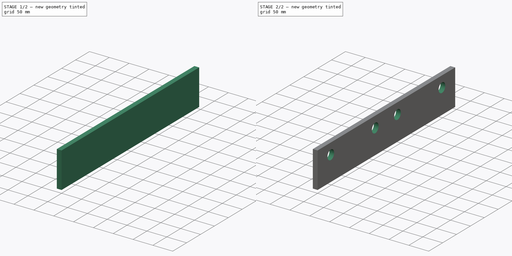
[diagram: build sequence overview — one tinted view per stage of 2, left to right]
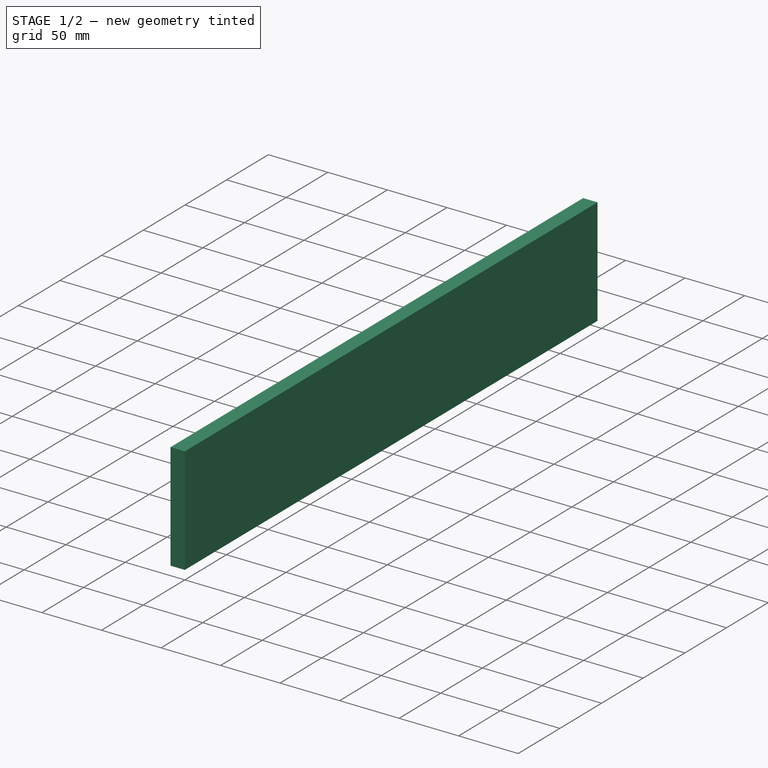
[diagram: stage 1 of 2 — iso view after this stage's code; geometry added in this stage tinted green]
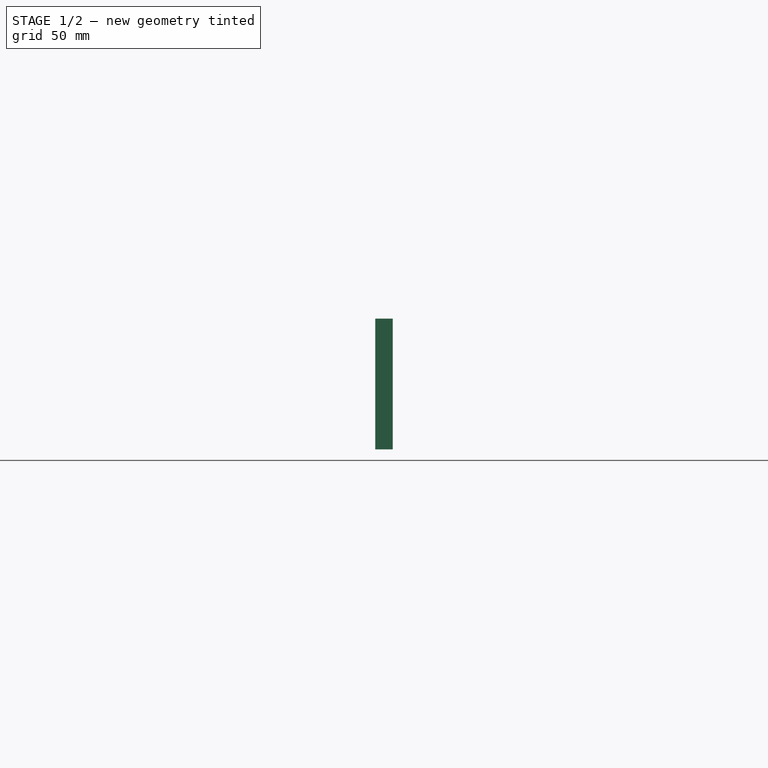
[diagram: stage 1 of 2 — front view after this stage's code; geometry added in this stage tinted green]
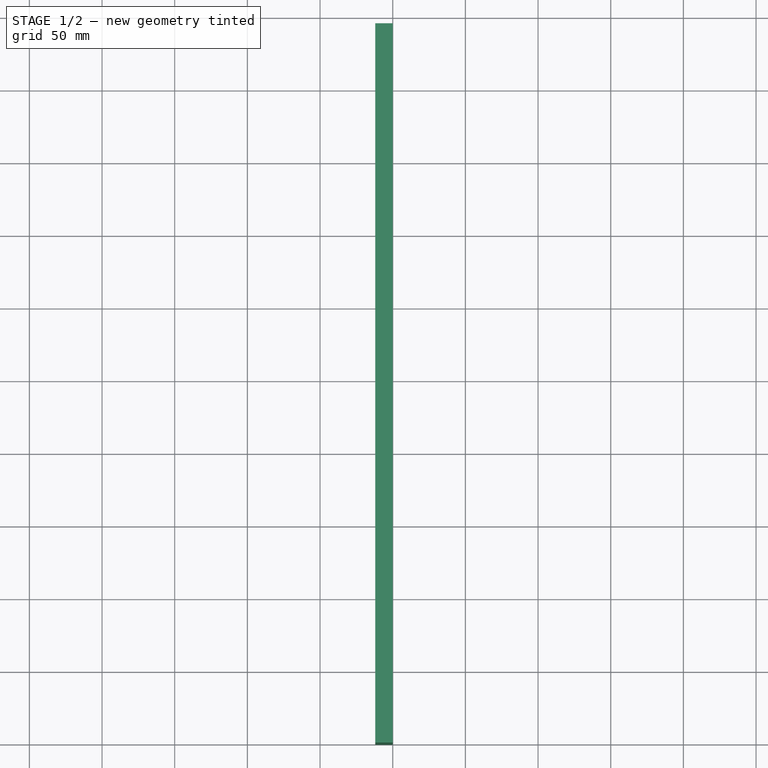
[diagram: stage 1 of 2 — top view after this stage's code; geometry added in this stage tinted green]
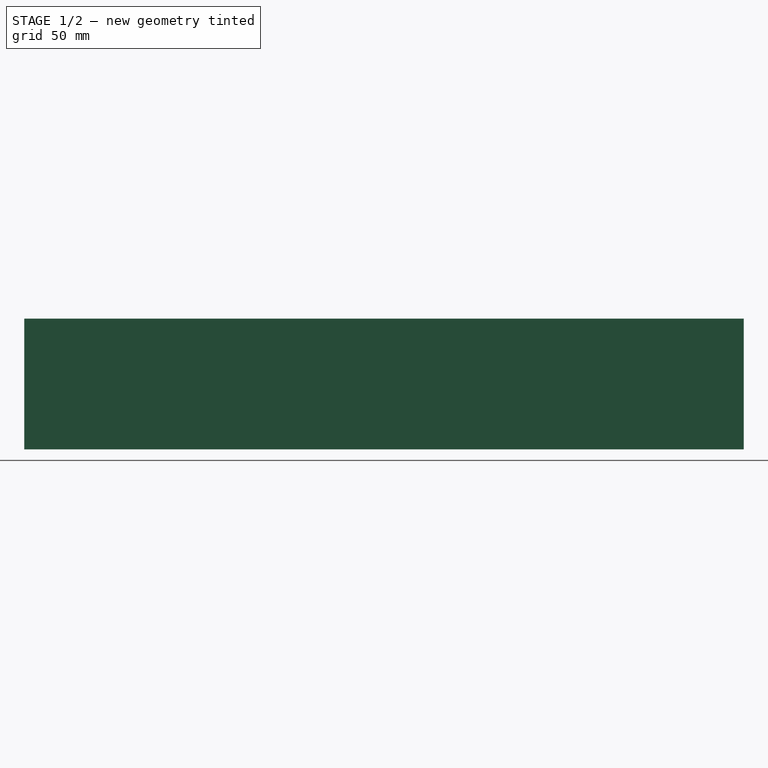
[diagram: stage 1 of 2 — right view after this stage's code; geometry added in this stage tinted green]
FCSTD DOCUMENT  (FreeCAD 0.19R24276 (Git))
Label: 1001_keyboard_front_16_
License: All rights reserved
LicenseURL: http://en.wikipedia.org/wiki/All_rights_reserved
objects: Sketcher::SketchObject×2, Spreadsheet::Sheet×1, PartDesign::Pad×1, PartDesign::Pocket×1, PartDesign::Body×1
note: 7 computed .brp shape members not serialized (recipe doc carries the construction recipe); baked Part::Feature solids carry a one-line shape summary decoded from their .brp

FEATURE [Sketcher::SketchObject] Sketch
  FullyConstrained = true
  MapMode = 4
  Placement = pos=(0,0,0) rot=(0.57735,0.57735,0.57735;2.0944rad)
  Support = -> [XY_Plane]
  expr: Constraints[6] = Spreadsheet.nY
  expr: Constraints[5] = Spreadsheet.nZ
  sketch-geometry (5):
    g0: LineSegment StartX=0 StartY=0 StartZ=0 EndX=0 EndY=90 EndZ=0
    g1: LineSegment StartX=495 StartY=0 StartZ=0 EndX=495 EndY=90 EndZ=0
    g2: LineSegment StartX=495 StartY=90 StartZ=0 EndX=0 EndY=90 EndZ=0
    g3: LineSegment StartX=247.5 StartY=0 StartZ=0 EndX=0 EndY=0 EndZ=0
    g4: LineSegment StartX=495 StartY=0 StartZ=0 EndX=247.5 EndY=0 EndZ=0
  constraints (14):
    c: Vertical(g0)
    c: Vertical(g1)
    c: Coincident(g2,g1)
    c: Coincident(g2,g0)
    c: Horizontal(g2)
    c: DistanceY(g1,g1) = 90
    c: DistanceX(g2,g2) = 495
    c: Coincident(g3,g0)
    c: Coincident(g4,g1)
    c: Horizontal(g4)
    c: Equal(g3,g4)
    c: Coincident(g4,g3)
    c: Horizontal(g3)
    c: Coincident(g0,g-1)
FEATURE [Spreadsheet::Sheet] Spreadsheet  label="xls"
  cells = B2=BODY FLOOR; E2=Ex.Ref.; B3=Thichness; C3=.T; D3=12; E3=mm; B7=KEYBOARD FRONT; D7=Sperrholz Birke 12 mm; B8=Width; C8=nY; D8(nY)=495; F8=Max Height; G8=Roof Thickness; H8=Correction; B9=Height; C9=nZ; D9(nZ)==+F9 - G9 + H9; E9=F(T); F9=100; G9=12; H9=2; B10=Thickness; C10=nT; D10(nT)=12; B11=Holes; B12=Player 1; C12=nD0; D12(nD0)=24; B13=Coin 1; C13=nD1; D13(nD1)=24
FEATURE [PartDesign::Pad] Pad
  AllowMultiFace = false
  Direction = (1,1,1)
  Length = 12
  Length2 = 100
  Profile = -> Sketch
  Reversed = true
  Type = 0
  expr: Length = Spreadsheet.nT
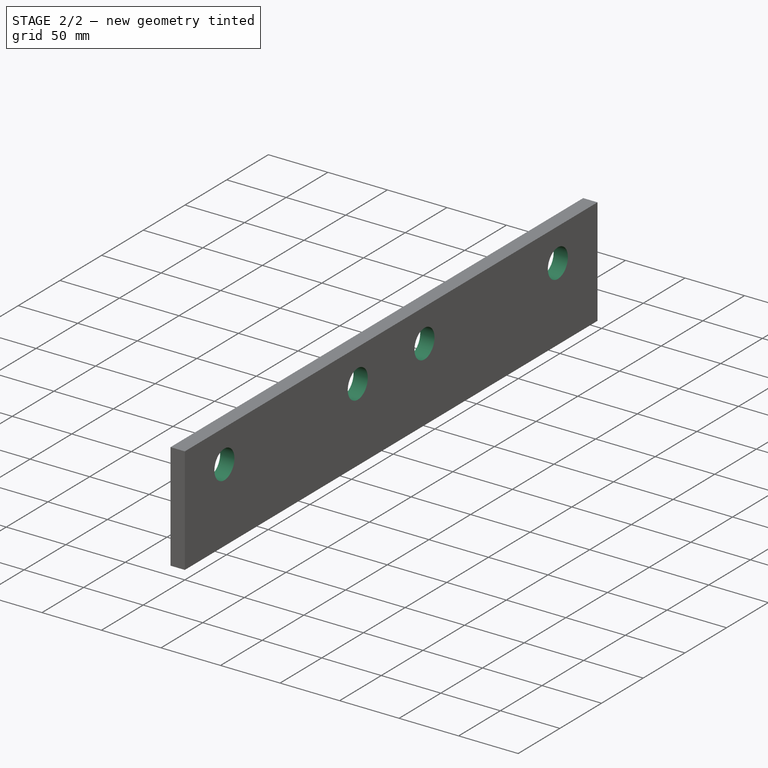
[diagram: stage 2 of 2 — iso view after this stage's code; geometry added in this stage tinted green]
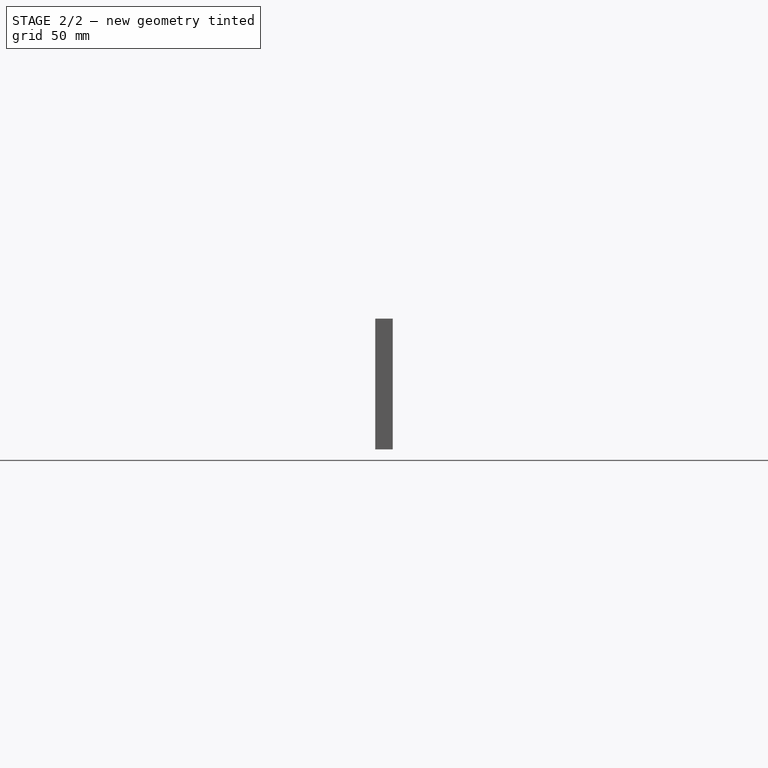
[diagram: stage 2 of 2 — front view after this stage's code; geometry added in this stage tinted green]
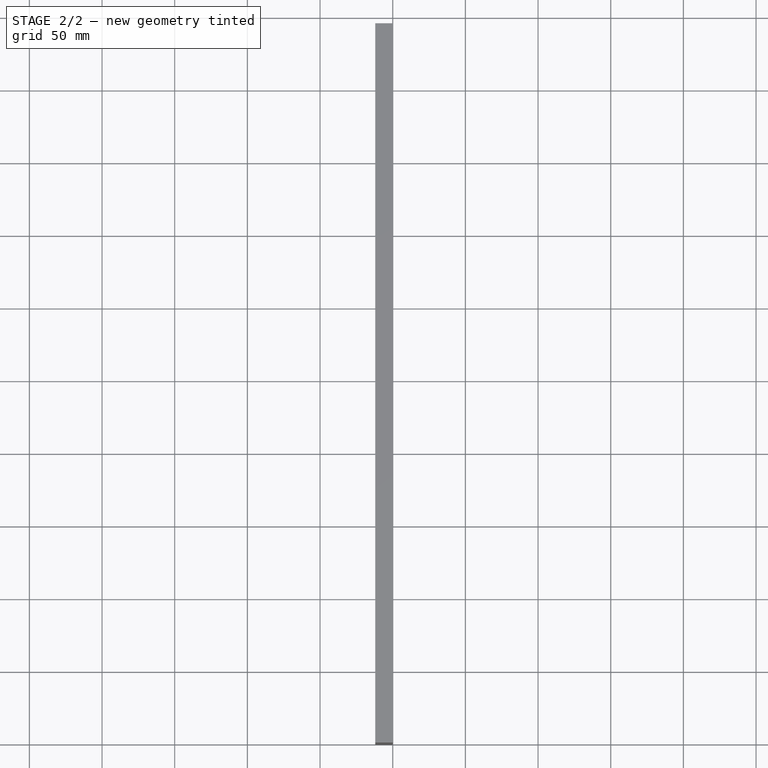
[diagram: stage 2 of 2 — top view after this stage's code; geometry added in this stage tinted green]
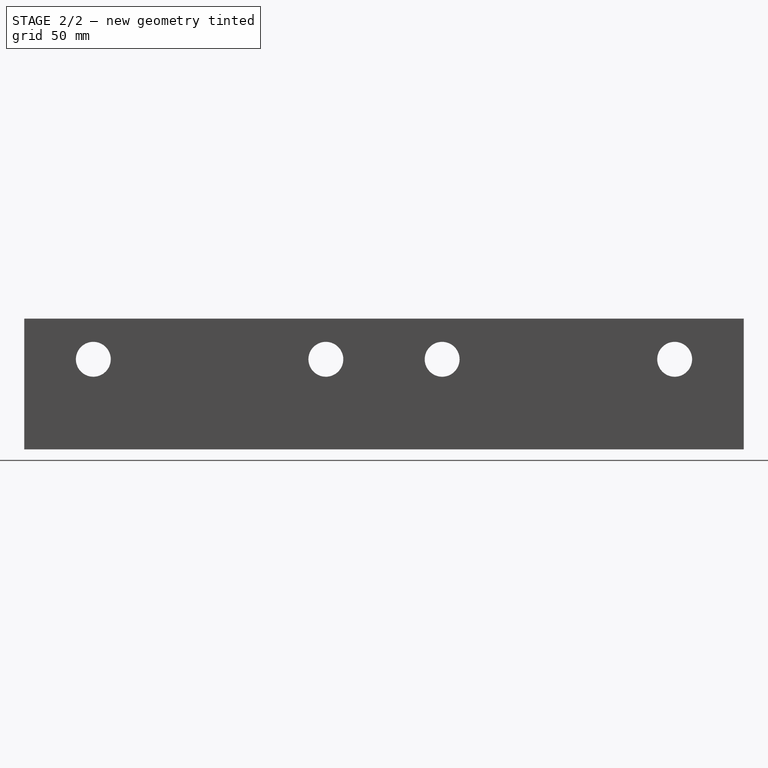
[diagram: stage 2 of 2 — right view after this stage's code; geometry added in this stage tinted green]
FEATURE [Sketcher::SketchObject] Sketch001
  ExternalGeometry = -> [Pad]
  FullyConstrained = false
  MapMode = 5
  Placement = pos=(-12,0,0) rot=(0.57735,-0.57735,-0.57735;2.0944rad)
  Support = -> [Pad]
  expr: Constraints[11] = <<xls>>.nD0
  expr: Constraints[10] = <<xls>>.nD1
  sketch-geometry (7):
    g0: Circle CenterX=-207.5 CenterY=62 CenterZ=0 NormalX=0 NormalY=0 NormalZ=1 AngleXU=0 Radius=12
    g1: LineSegment StartX=-447.5 StartY=62 StartZ=0 EndX=-247.5 EndY=62 EndZ=0
    g2: LineSegment StartX=-247.5 StartY=62 StartZ=0 EndX=-47.5 EndY=62 EndZ=0
    g3: LineSegment StartX=-247.5 StartY=0 StartZ=0 EndX=-247.5 EndY=62 EndZ=0
    g4: Circle CenterX=-287.5 CenterY=62 CenterZ=0 NormalX=0 NormalY=0 NormalZ=1 AngleXU=0 Radius=12
    g5: Circle CenterX=-447.5 CenterY=62 CenterZ=0 NormalX=0 NormalY=0 NormalZ=1 AngleXU=0 Radius=12
    g6: Circle CenterX=-47.5 CenterY=62 CenterZ=0 NormalX=0 NormalY=0 NormalZ=1 AngleXU=0 Radius=12
  constraints (19):
    c: Parallel(g1,g2)
    c: Equal(g1,g2)
    c: DistanceX(g1,g1) = 200
    c: Horizontal(g1)
    c: Coincident(g3,g1)
    c: Vertical(g3)
    c: Coincident(g5,g1)
    c: Coincident(g6,g2)
    c: Equal(g6,g5)
    c: Equal(g0,g4)
    c: Diameter(g0) = 24
    c: Diameter(g6) = 24
    c: Coincident(g2,g1)
    c: Vertical(g1,g-3)
    c: PointOnObject(g4,g1)
    c: PointOnObject(g0,g2)
    c: DistanceX(g1,g0) = 40
    c: DistanceX(g4,g1) = 40
    c: DistanceY(g5,g-4) = 28
FEATURE [PartDesign::Pocket] Pocket
  AllowMultiFace = false
  BaseFeature = -> Pad
  Length = 20
  Length2 = 100
  Profile = -> Sketch001
  Type = 0
FEATURE [PartDesign::Body] Body
  Group = -> [Sketch,Pad,Sketch001,Pocket]
  Origin = -> Origin
  Tip = -> Pocket
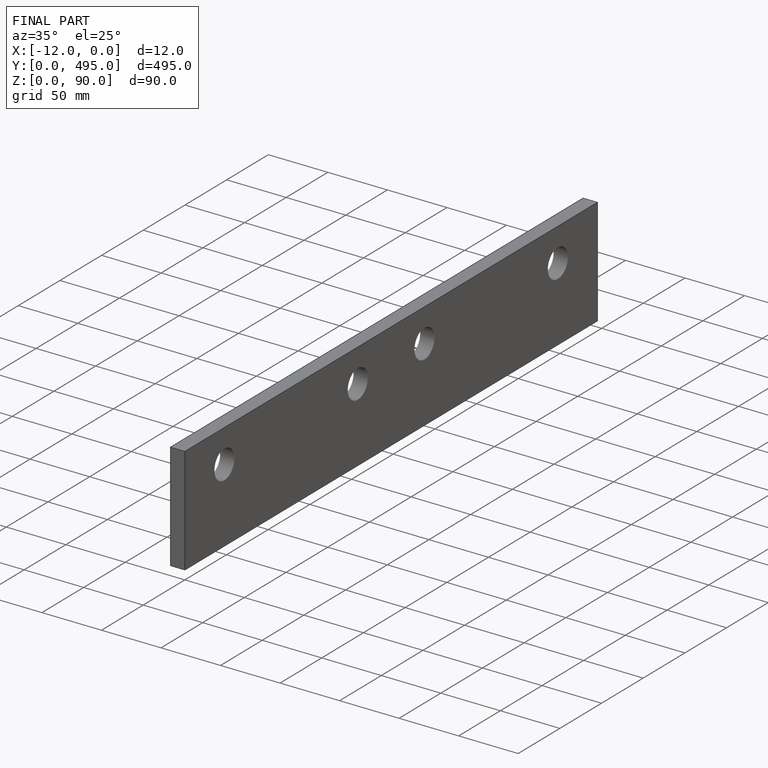
[diagram: finished part — iso view with bounding-box wireframe]
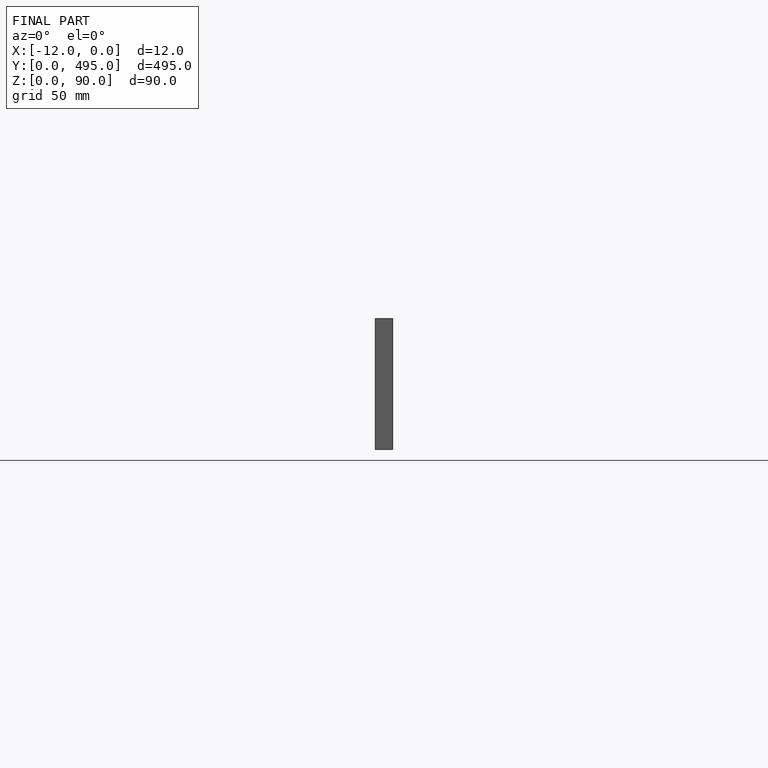
[diagram: finished part — front view with bounding-box wireframe]
